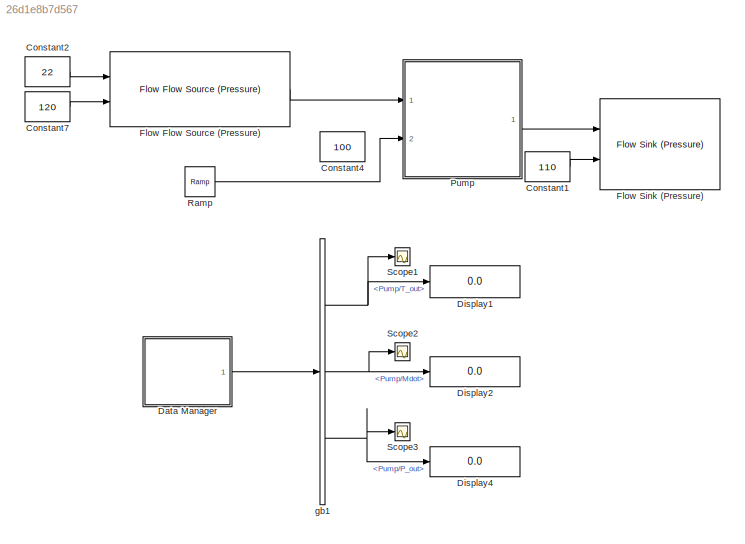
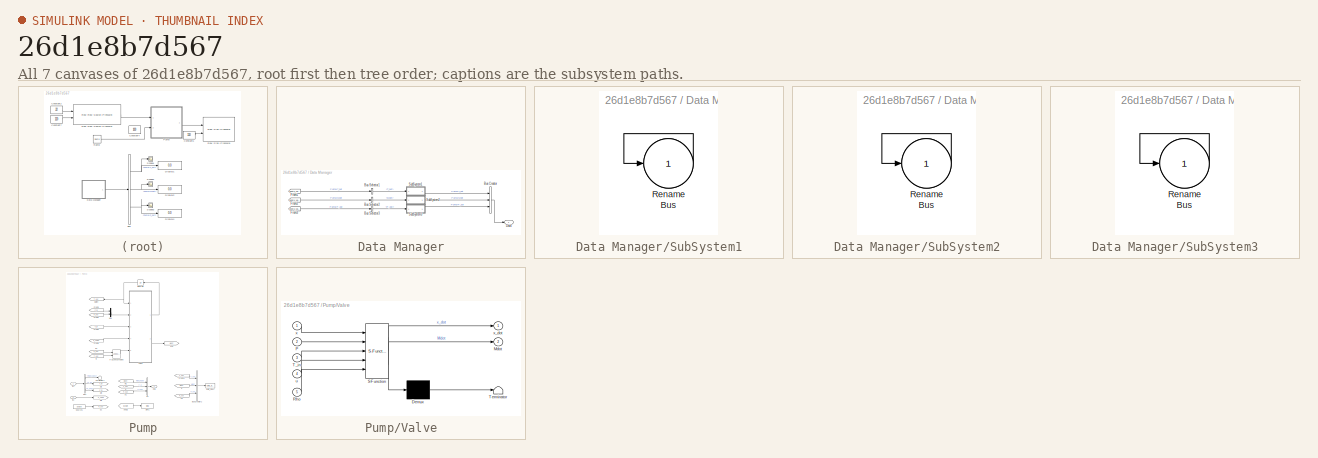
[diagram: thumbnail index - all 7 canvases of the model, root first then tree order]
MODEL slx_26d1e8b7d567
KIND model
CONFIG AbsTol = auto
CONFIG FixedStep = auto
CONFIG MaxStep = auto
CONFIG MinStep = auto
CONFIG RelTol = 1e-3
CONFIG SampleTimeConstraint = Unconstrained
CONFIG Solver = ode23tb
CONFIG SolverMode = Auto
CONFIG SolverName = ode23tb
CONFIG StartTime = 0.0
CONFIG StopTime = 100
BLOCK [Constant] Constant1
  Value = 110
BLOCK [Constant] Constant2
  Value = 22
BLOCK [Constant] Constant4
  Value = 100
BLOCK [Constant] Constant7
  Value = 120
BLOCK [SubSystem] Data Manager
  AncestorBlock = DAEMOT_Lib/Support Functions/Data Manager
  OpenFcn = data_manager
  Ports = [0, 1]
  RequestExecContextInheritance = off
  UserDataPersistent = on
  Variant = off
BLOCK [BusCreator] Data Manager/Bus Creator
  DisplayOption = bar
  InheritFromInputs = on
  Inputs = 3
  Ports = [3, 1]
BLOCK [BusSelector] Data Manager/Bus Selector1
  OutputSignals = T_out
  Ports = [1, 1]
BLOCK [BusSelector] Data Manager/Bus Selector2
  OutputSignals = Mdot
  Ports = [1, 1]
BLOCK [BusSelector] Data Manager/Bus Selector3
  OutputSignals = P_out
  Ports = [1, 1]
BLOCK [Outport] Data Manager/Data
  IconDisplay = Port number
BLOCK [From] Data Manager/From1
  GotoTag = gdata_Valve_testPumpdata_sink1
  TagVisibility = global
  UserDataPersistent = on
BLOCK [From] Data Manager/From2
  GotoTag = gdata_Valve_testPumpdata_sink1
  TagVisibility = global
  UserDataPersistent = on
BLOCK [From] Data Manager/From3
  GotoTag = gdata_Valve_testPumpdata_sink1
  TagVisibility = global
  UserDataPersistent = on
BLOCK [SubSystem] Data Manager/SubSystem1
  Ports = [1, 1]
  RequestExecContextInheritance = off
  Variant = off
BLOCK [Outport] Data Manager/SubSystem1/Bus
  IconDisplay = Port number
BLOCK [Inport] Data Manager/SubSystem1/Rename
  IconDisplay = Port number
BLOCK [SubSystem] Data Manager/SubSystem2
  Ports = [1, 1]
  RequestExecContextInheritance = off
  Variant = off
BLOCK [Outport] Data Manager/SubSystem2/Bus
  IconDisplay = Port number
BLOCK [Inport] Data Manager/SubSystem2/Rename
  IconDisplay = Port number
BLOCK [SubSystem] Data Manager/SubSystem3
  Ports = [1, 1]
  RequestExecContextInheritance = off
  Variant = off
BLOCK [Outport] Data Manager/SubSystem3/Bus
  IconDisplay = Port number
BLOCK [Inport] Data Manager/SubSystem3/Rename
  IconDisplay = Port number
BLOCK [Display] Display1
  Decimation = 1
  Ports = [1]
BLOCK [Display] Display2
  Decimation = 1
  Ports = [1]
BLOCK [Display] Display4
  Decimation = 1
  Ports = [1]
BLOCK [Reference] Flow Flow Source (Pressure)  REF=DAEMOT_Lib/Components/Flow Flow Source (Pressure)
  Ports = [2, 1]
  SourceBlock = DAEMOT_Lib/Components/Flow Flow Source (Pressure)
  SourceType = Flow Source (Pressure)
BLOCK [Reference] Flow Sink (Pressure)  REF=DAEMOT_Lib/Components/Flow Sink (Pressure)
  Ports = [2]
  SourceBlock = DAEMOT_Lib/Components/Flow Sink (Pressure)
  SourceType = Flow Sink (Pressure)
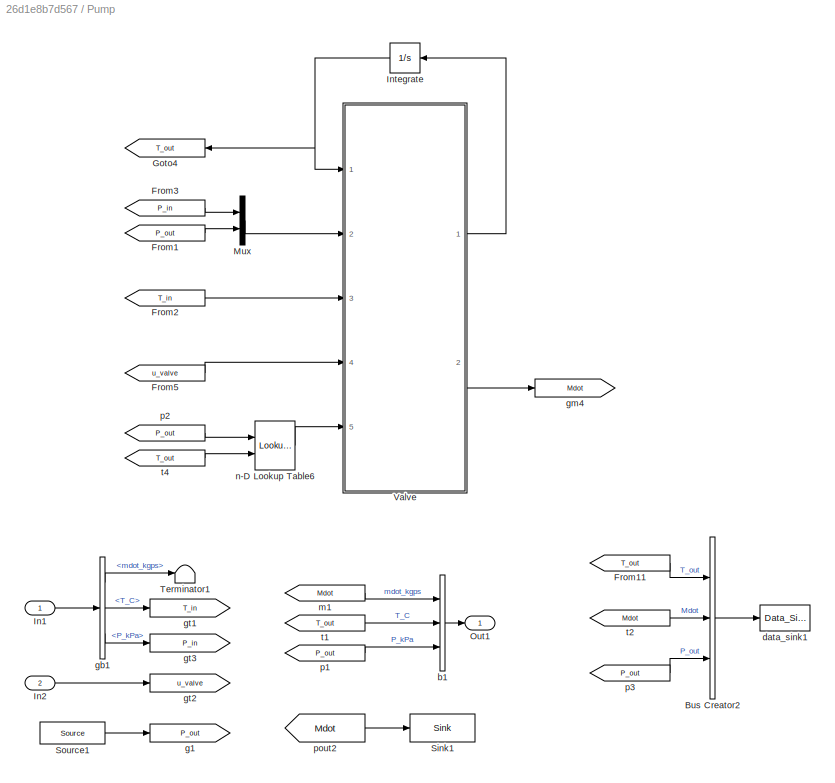
BLOCK [SubSystem] Pump
  OpenFcn = load('Fluids.mat');\nSet_Fluid_Popup_Names( Fluid )
  Ports = [2, 1]
  RequestExecContextInheritance = off
  Variant = off
BLOCK [BusCreator] Pump/Bus Creator2
  DisplayOption = bar
  InheritFromInputs = on
  Inputs = 3
  Ports = [3, 1]
BLOCK [From] Pump/From1
  CloseFcn = tagdialog Close
  GotoTag = P_out
BLOCK [From] Pump/From11
  CloseFcn = tagdialog Close
  GotoTag = T_out
BLOCK [From] Pump/From2
  CloseFcn = tagdialog Close
  GotoTag = T_in
BLOCK [From] Pump/From3
  CloseFcn = tagdialog Close
  GotoTag = P_in
BLOCK [From] Pump/From5
  CloseFcn = tagdialog Close
  GotoTag = u_valve
BLOCK [Goto] Pump/Goto4
  GotoTag = T_out
BLOCK [Inport] Pump/In1
  IconDisplay = Port number
BLOCK [Inport] Pump/In2
  IconDisplay = Port number
  Port = 2
BLOCK [Integrator] Pump/Integrate
  InitialCondition = [T_init]
  Ports = [1, 1]
BLOCK [Mux] Pump/Mux
  DisplayOption = bar
  Inputs = 2
  Ports = [2, 1]
BLOCK [Outport] Pump/Out1
  IconDisplay = Port number
BLOCK [Reference] Pump/Sink1  REF=DAEMOT_Lib/Support Functions/Sink
  Ports = [1]
  SourceBlock = DAEMOT_Lib/Support Functions/Sink
  SourceType = Sink
BLOCK [Reference] Pump/Source1  REF=DAEMOT_Lib/Support Functions/Source
  Ports = [0, 1]
  SourceBlock = DAEMOT_Lib/Support Functions/Source
  SourceType = Source
BLOCK [Terminator] Pump/Terminator1
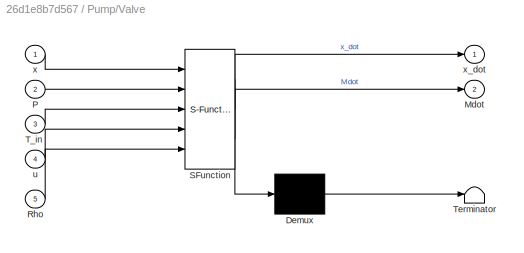
BLOCK [SubSystem] Pump/Valve
  ErrorFcn = Stateflow.Translate.translate
  PermitHierarchicalResolution = ExplicitOnly
  Ports = [5, 2]
  RequestExecContextInheritance = off
  SFBlockType = MATLAB Function
  TreatAsAtomicUnit = on
  Variant = off
BLOCK [Demux] Pump/Valve/ Demux 
  Outputs = 1
  Ports = [1, 1]
BLOCK [S-Function] Pump/Valve/ SFunction 
  EnableBusSupport = on
  FunctionName = sf_sfun
  Parameters = C_v,D,L,SG,k_v
  PortCounts = [5 3]
  Ports = [5, 3]
  SFunctionDeploymentMode = off
  Tag = Stateflow S-Function Valve_test 5
BLOCK [Terminator] Pump/Valve/ Terminator 
BLOCK [Outport] Pump/Valve/Mdot
  IconDisplay = Port number
  Port = 2
BLOCK [Inport] Pump/Valve/P
  IconDisplay = Port number
  Port = 2
BLOCK [Inport] Pump/Valve/Rho
  IconDisplay = Port number
  Port = 5
BLOCK [Inport] Pump/Valve/T_in
  IconDisplay = Port number
  Port = 3
BLOCK [Inport] Pump/Valve/u
  IconDisplay = Port number
  Port = 4
BLOCK [Inport] Pump/Valve/x
  IconDisplay = Port number
BLOCK [Outport] Pump/Valve/x_dot
  IconDisplay = Port number
BLOCK [BusCreator] Pump/b1
  DisplayOption = bar
  InheritFromInputs = on
  Inputs = 3
  Ports = [3, 1]
BLOCK [Reference] Pump/data_sink1  REF=DAEMOT_Lib/Support Functions/Data_Sink
  Ports = [1]
  SourceBlock = DAEMOT_Lib/Support Functions/Data_Sink
  SourceType = Data Sink
BLOCK [Goto] Pump/g1
  GotoTag = P_out
BLOCK [BusSelector] Pump/gb1
  OutputSignals = mdot_kgps,T_C,P_kPa
  Ports = [1, 3]
BLOCK [Goto] Pump/gm4
  GotoTag = Mdot
BLOCK [Goto] Pump/gt1
  GotoTag = T_in
BLOCK [Goto] Pump/gt2
  GotoTag = u_valve
BLOCK [Goto] Pump/gt3
  GotoTag = P_in
BLOCK [From] Pump/m1
  CloseFcn = tagdialog Close
  GotoTag = Mdot
BLOCK [Lookup_n-D] Pump/n-D Lookup Table6
  BreakpointsForDimension1 = Fluid.P
  BreakpointsForDimension2 = Fluid.T
  BreakpointsForDimension3 = [5, 7]
  ExtrapMethod = Clip
  Ports = [2, 1]
  RndMeth = Simplest
  Table = Fluid.Rho_pt
  UseLastTableValue = on
BLOCK [From] Pump/p1
  CloseFcn = tagdialog Close
  GotoTag = P_out
BLOCK [From] Pump/p2
  CloseFcn = tagdialog Close
  GotoTag = P_out
BLOCK [From] Pump/p3
  CloseFcn = tagdialog Close
  GotoTag = P_out
BLOCK [From] Pump/pout2
  GotoTag = Mdot
BLOCK [From] Pump/t1
  CloseFcn = tagdialog Close
  GotoTag = T_out
BLOCK [From] Pump/t2
  CloseFcn = tagdialog Close
  GotoTag = Mdot
BLOCK [From] Pump/t4
  CloseFcn = tagdialog Close
  GotoTag = T_out
BLOCK [Reference] Ramp  REF=simulink/Sources/Ramp
  Ports = [0, 1]
  SourceBlock = simulink/Sources/Ramp
  SourceType = Ramp
BLOCK [Scope] Scope1
  Ports = [1]
  ScopeSpecificationString = C++SS(StrPVP('Location','[188, 365, 512, 604]'),StrPVP('Open','off'),MxPVP('AxesTitles',24,'struct(''axes1'',''%<SignalLabel>'')'),MxPVP('ScopeGraphics',28,'struct(''FigureColor'',''[0.5 0.5 0.5]'',''AxesColor'',''[0 0 0]'',''AxesTickColor'',''[1 1 1]'',''LineColors'',''[1 1 0;1 0 1;0 1 1;1 0 0;0 1 0;0 0 1]'',''LineStyles'',''-|-|-|-|-|-'',''LineWidths'',''[0.5 0.5 0.5 0.5 0.5 0.5]'',''MarkerStyle...<+251ch>
BLOCK [Scope] Scope2
  Ports = [1]
  ScopeSpecificationString = Simulink.scopes.TimeScopeBlockCfg('CurrentConfiguration', extmgr.ConfigurationSet(extmgr.Configuration('Core','General UI',true),extmgr.Configuration('Core','Source UI',true),extmgr.Configuration('Sources','WiredSimulink',true,'DataLoggingVariableName','ScopeData1','DataLoggingSaveFormat','Array','DataLoggingDecimation','1','DataLoggingDecimateData',true),extmgr.Configuration('Visuals','Time Domai...<+1664ch>
BLOCK [Scope] Scope3
  Ports = [1]
  ScopeSpecificationString = C++SS(StrPVP('Location','[188, 365, 512, 604]'),StrPVP('Open','off'),MxPVP('AxesTitles',24,'struct(''axes1'',''%<SignalLabel>'')'),MxPVP('ScopeGraphics',28,'struct(''FigureColor'',''[0.5 0.5 0.5]'',''AxesColor'',''[0 0 0]'',''AxesTickColor'',''[1 1 1]'',''LineColors'',''[1 1 0;1 0 1;0 1 1;1 0 0;0 1 0;0 0 1]'',''LineStyles'',''-|-|-|-|-|-'',''LineWidths'',''[0.5 0.5 0.5 0.5 0.5 0.5]'',''MarkerStyle...<+284ch>
BLOCK [BusSelector] gb1
  OutputSignals = Pump/T_out,Pump/Mdot,Pump/P_out
  Ports = [1, 3]
LINE Constant1:1 -> Flow Sink (Pressure):2
LINE Constant2:1 -> Flow Flow Source (Pressure):1
LINE Constant7:1 -> Flow Flow Source (Pressure):2
LINE Data Manager:1 -> gb1:1
LINE Flow Flow Source (Pressure):1 -> Pump:1
LINE Pump:1 -> Flow Sink (Pressure):1
LINE Ramp:1 -> Pump:2
NET gb1:1 -> Display1:1, Scope1:1
NET gb1:2 -> Display2:1, Scope2:1
NET gb1:3 -> Display4:1, Scope3:1
note: NET lines group one-source signal fan-out (src -> all destinations, sorted); 1:1 wires keep LINE
CHART Pump/Valve states=1 transitions=1
  STATE_LABEL 'eML_blk_kernel()'
  STATE_LABEL 'SCRIPT:\nfunction [x_dot,Mdot]= Valve(x,P,T_in,u,Rho,D,C_v,L,SG, k_v)\n\n\n% Constants and Conversions\nV       = L*pi*D^2/4;               % Volume\ng       = 9.81;                     % Gravitational acceleration\n% C_v     = 5;                        % valve flow coefficient\n% SG      = 0.8;                      % specific gravity of JP8\n\n% Parse states\nT       = x(1);                     % Temperatur...<+670ch>'
